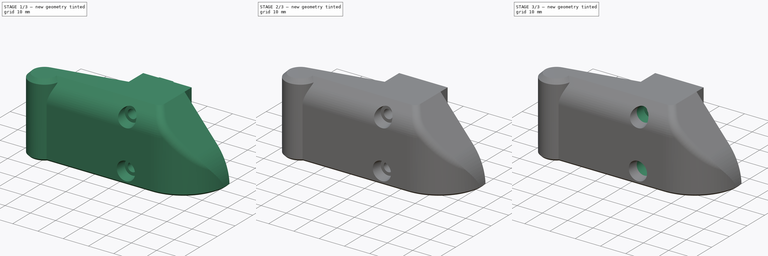
[diagram: build sequence overview — one tinted view per stage of 3, left to right]
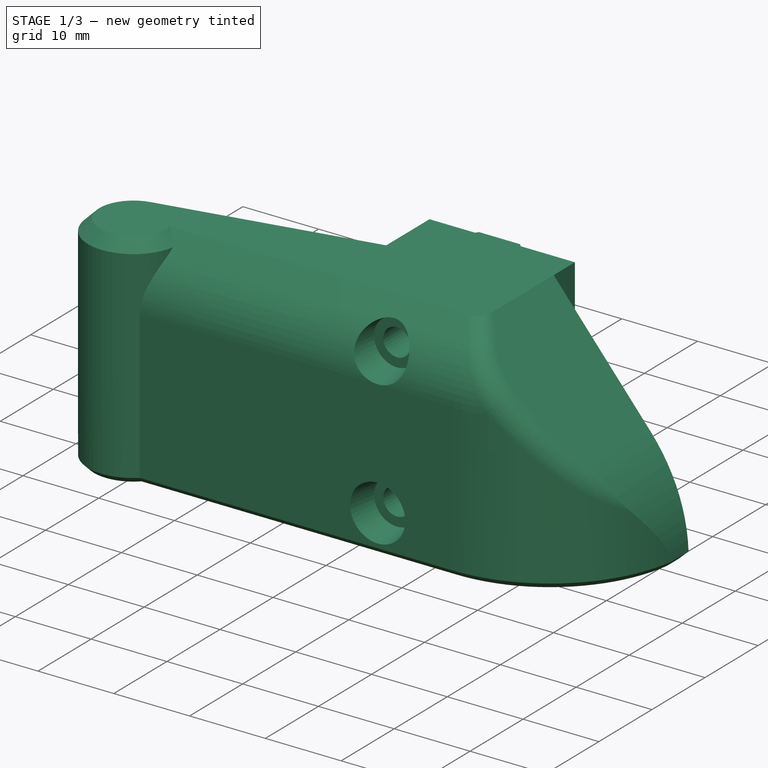
[diagram: stage 1 of 3 — iso view after this stage's code; geometry added in this stage tinted green]
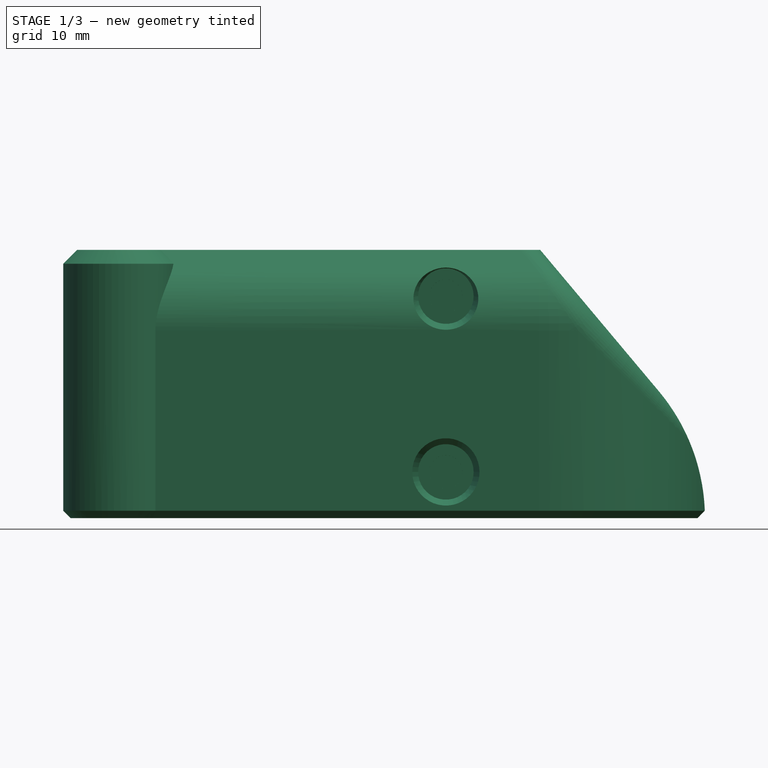
[diagram: stage 1 of 3 — front view after this stage's code; geometry added in this stage tinted green]
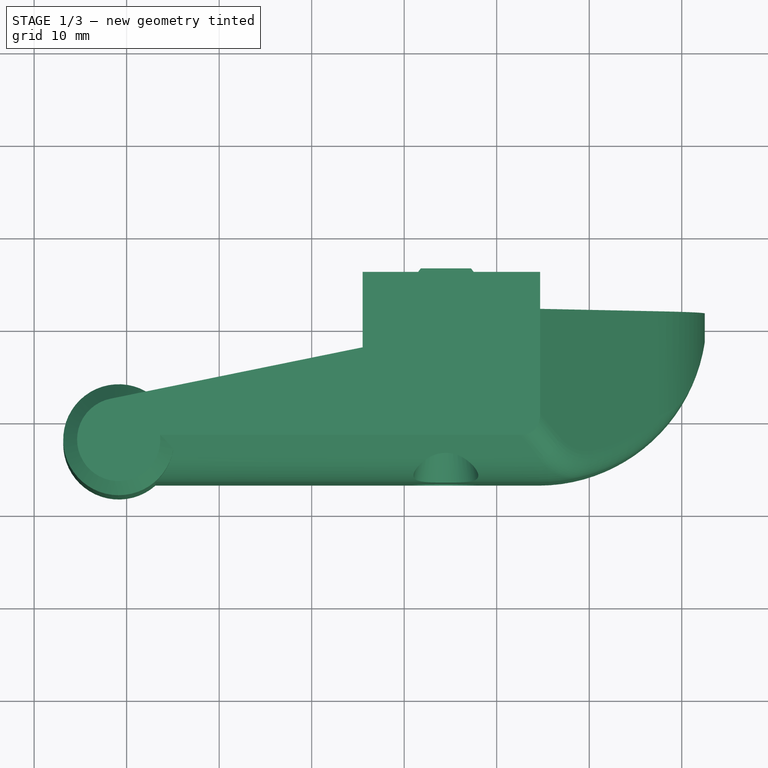
[diagram: stage 1 of 3 — top view after this stage's code; geometry added in this stage tinted green]
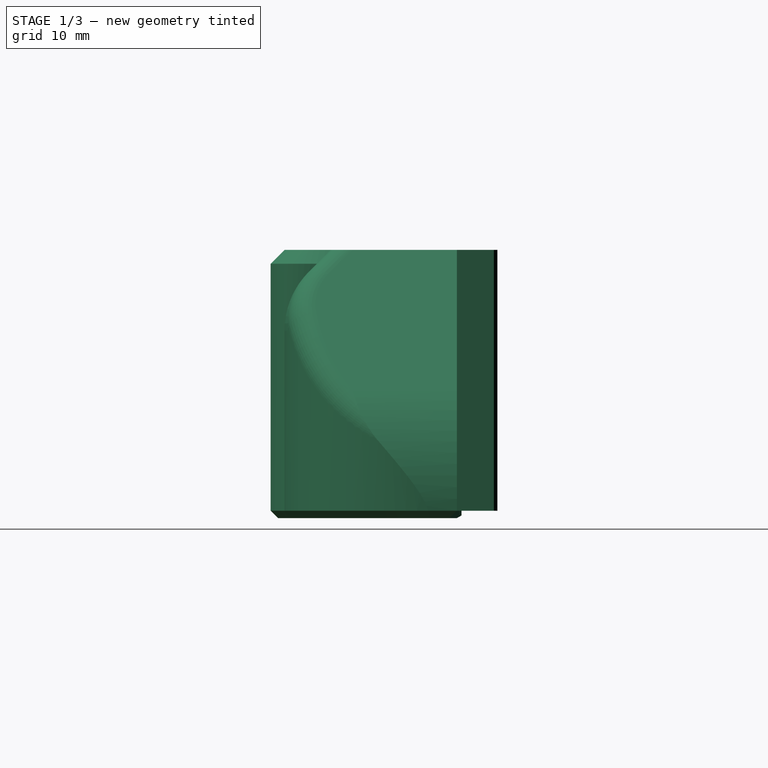
[diagram: stage 1 of 3 — right view after this stage's code; geometry added in this stage tinted green]
FCSTD DOCUMENT  (FreeCAD 1.0R39109 (Git))
Label: ExtendedHandle-Hinge_Bottom
License: All rights reserved
LicenseURL: https://en.wikipedia.org/wiki/All_rights_reserved
objects: Sketcher::SketchObject×4, PartDesign::Pocket×3, Part::Feature×1, Part::Refine×1, PartDesign::FeatureBase×1, PartDesign::Pad×1, PartDesign::Body×1
note: 25 computed .brp shape members not serialized (recipe doc carries the construction recipe); baked Part::Feature solids carry a one-line shape summary decoded from their .brp

FEATURE [Part::Feature] Handle_Hinge_Bottom001_solid  label="Handle_Hinge_Bottom001 (Solid)"
  shape: bbox 69.35 x 20.62 x 29 mm, 2824 faces (baked)
FEATURE [Part::Refine] Handle_Hinge_Bottom001_solid001  label="Handle_Hinge_Bottom001 (Solid)001"
  Source = -> Handle_Hinge_Bottom001_solid
FEATURE [PartDesign::FeatureBase] BaseFeature
  BaseFeature = -> Handle_Hinge_Bottom001_solid001
  Suppressed = false
FEATURE [Sketcher::SketchObject] Sketch
  ArcFitTolerance = 1e-06
  AttachmentSupport = -> [BaseFeature]
  ExternalGeometry = -> [BaseFeature]
  FullyConstrained = true
  MakeInternals = false
  MapMode = 5
  Placement = pos=(0,0,144.5) rot=(0,0,1;0rad)
  sketch-geometry (12):
    g0: LineSegment StartX=504.699 StartY=251.911 StartZ=0 EndX=504.699 EndY=255.911 EndZ=0
    g1: LineSegment StartX=504.699 StartY=255.911 StartZ=0 EndX=497.506 EndY=255.911 EndZ=0
    g2: LineSegment StartX=497.506 StartY=255.911 StartZ=0 EndX=497.217 EndY=256.291 EndZ=0
    g3: LineSegment StartX=497.217 StartY=256.291 StartZ=0 EndX=491.795 EndY=256.291 EndZ=0
    g4: LineSegment StartX=491.795 StartY=256.291 StartZ=0 EndX=491.506 EndY=255.911 EndZ=0
    g5: LineSegment StartX=491.506 StartY=255.911 StartZ=0 EndX=485.506 EndY=255.911 EndZ=0
    g6: LineSegment StartX=485.506 StartY=255.911 StartZ=0 EndX=485.506 EndY=251.911 EndZ=0
    g7: LineSegment StartX=485.506 StartY=251.911 StartZ=0 EndX=504.699 EndY=251.911 EndZ=0
    g8: LineSegment [constr] StartX=491.506 StartY=251.911 StartZ=0 EndX=491.506 EndY=255.911 EndZ=0
    g9: LineSegment [constr] StartX=491.795 StartY=252.411 StartZ=0 EndX=491.795 EndY=256.291 EndZ=0
    g10: LineSegment [constr] StartX=497.217 StartY=252.411 StartZ=0 EndX=497.217 EndY=256.291 EndZ=0
    g11: LineSegment [constr] StartX=497.506 StartY=251.911 StartZ=0 EndX=497.506 EndY=255.911 EndZ=0
  constraints (30):
    c: Coincident(g0,g-5)
    c: Coincident(g1,g0)
    c: Coincident(g2,g1)
    c: Coincident(g3,g2)
    c: Coincident(g4,g3)
    c: Coincident(g5,g4)
    c: Coincident(g6,g-3)
    c: Coincident(g7,g6)
    c: Coincident(g7,g0)
    c: Coincident(g5,g6)
    c: Angle(g7,g6) = 1.5708
    c: DistanceY(g6,g6) = 4
    c: Parallel(g7,g5)
    c: Parallel(g7,g3)
    c: Parallel(g7,g1)
    c: Parallel(g6,g0)
    c: Equal(g6,g0)
    c: Coincident(g8,g-3)
    c: Coincident(g8,g4)
    c: Coincident(g9,g-4)
    c: Coincident(g9,g3)
    c: Coincident(g10,g-4)
    c: Coincident(g10,g2)
    c: Coincident(g11,g-5)
    c: Coincident(g11,g1)
    c: Parallel(g11,g0)
    c: Parallel(g10,g11)
    c: Parallel(g6,g8)
    c: Parallel(g9,g8)
    c: Distance(g2,g2) = 0.477
FEATURE [PartDesign::Pad] Pad
  BaseFeature = -> BaseFeature
  Direction = (0,0,1)
  Length = 28.2
  Length2 = 10
  Profile = -> Sketch
  ReferenceAxis = -> Sketch [N_Axis]
  Refine = true
  Reversed = true
  Suppressed = false
  Type = 0
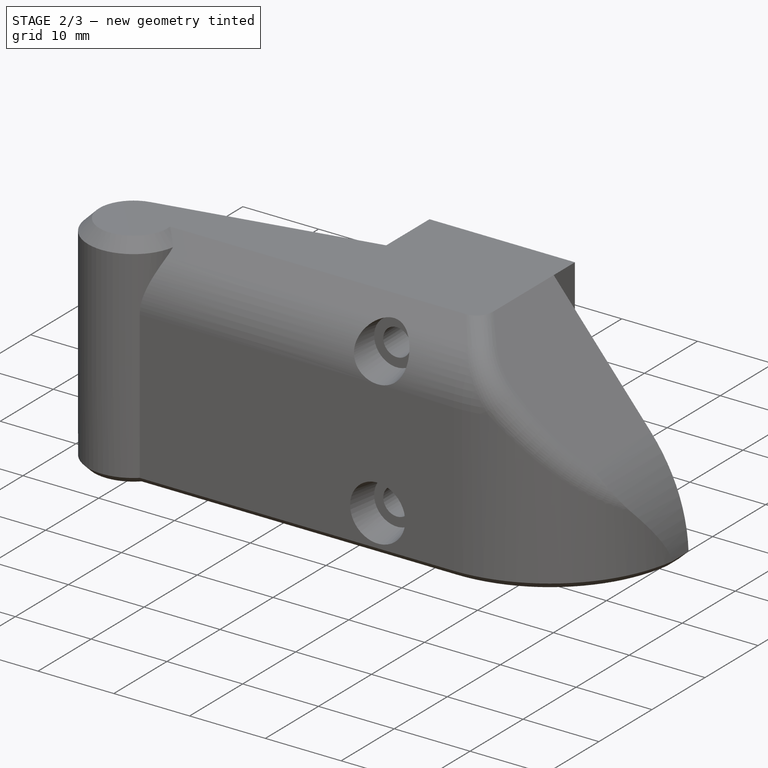
[diagram: stage 2 of 3 — iso view after this stage's code; geometry added in this stage tinted green]
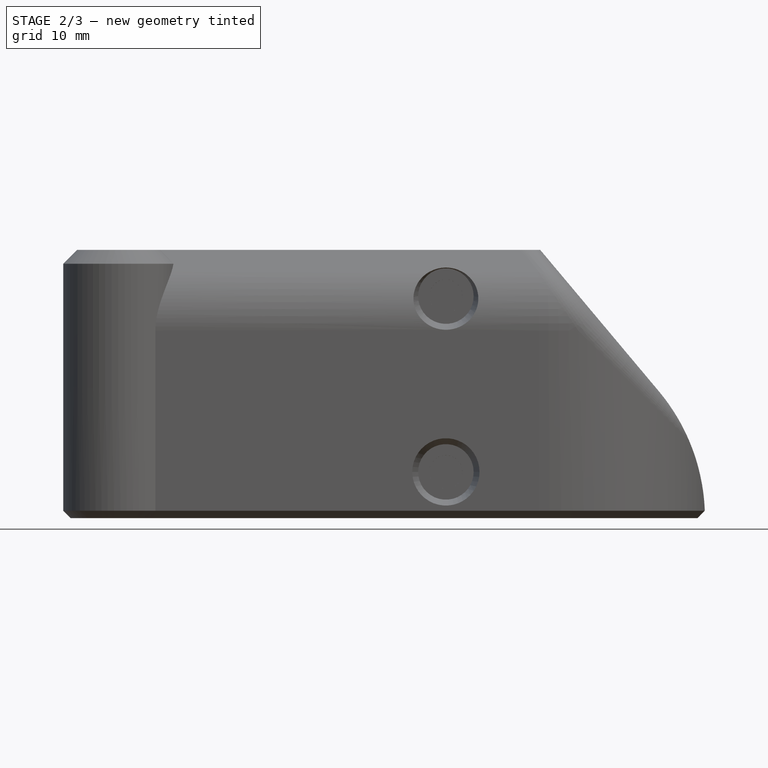
[diagram: stage 2 of 3 — front view after this stage's code; geometry added in this stage tinted green]
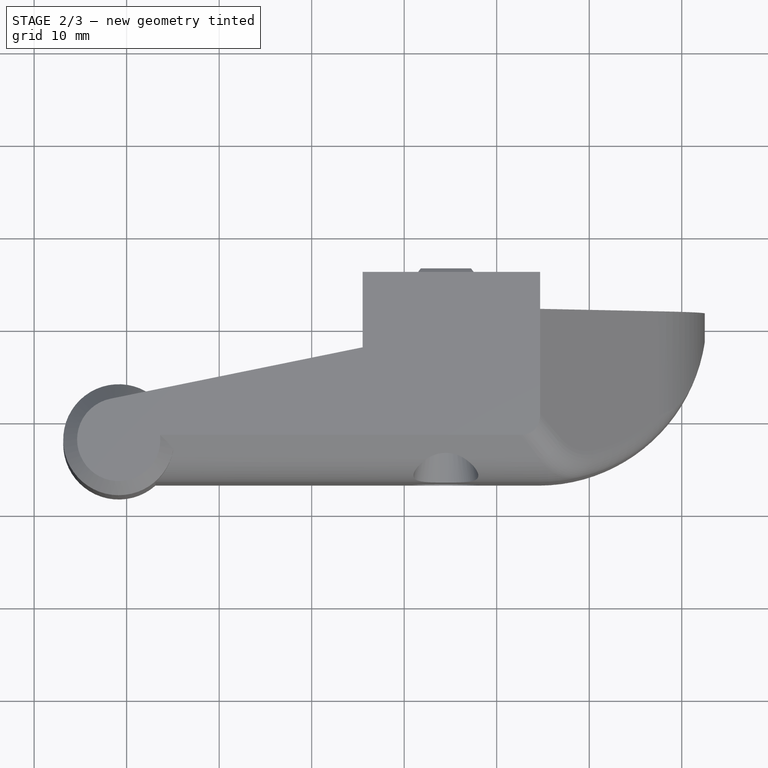
[diagram: stage 2 of 3 — top view after this stage's code; geometry added in this stage tinted green]
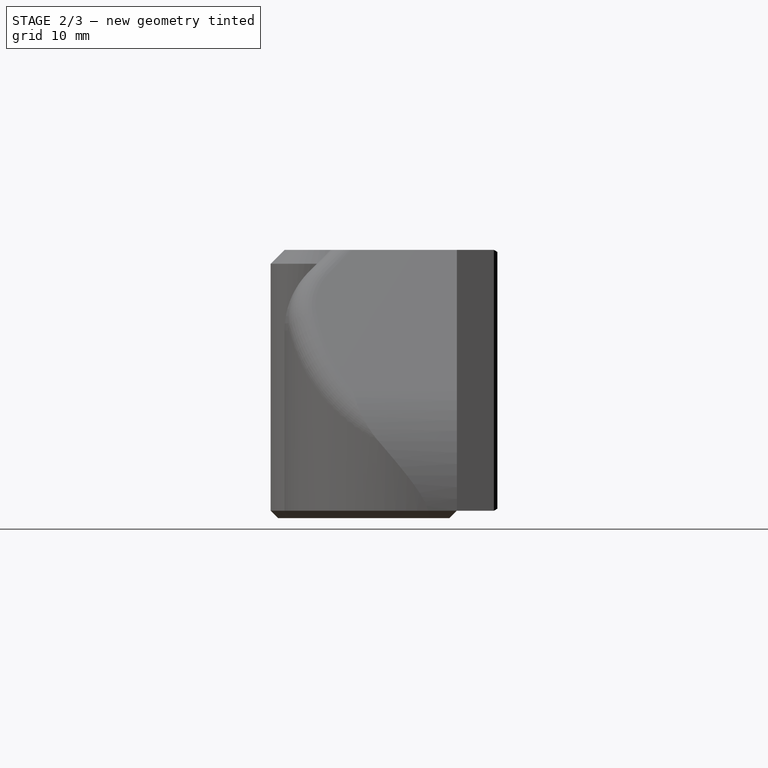
[diagram: stage 2 of 3 — right view after this stage's code; geometry added in this stage tinted green]
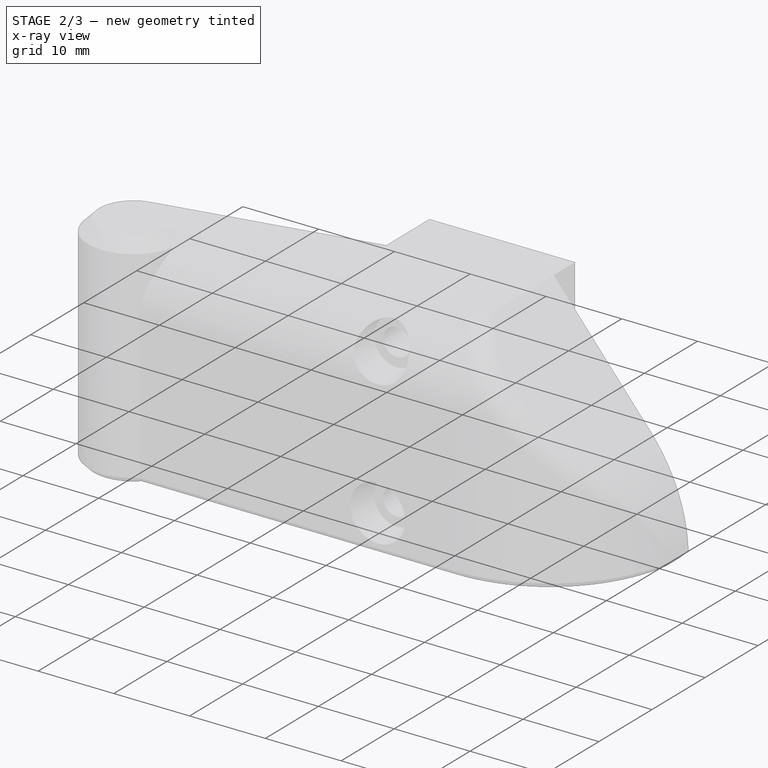
[diagram: stage 2 of 3 — x-ray composite at the iso view; earlier geometry ghosted, this stage's added geometry solid]
FEATURE [Sketcher::SketchObject] Sketch001
  ArcFitTolerance = 1e-06
  AttachmentSupport = -> [Pad]
  ExternalGeometry = -> [Pad]
  FullyConstrained = true
  MakeInternals = false
  MapMode = 5
  Placement = pos=(485.506,0,0) rot=(0.57735,-0.57735,-0.57735;2.0944rad)
  sketch-geometry (10):
    g0: LineSegment StartX=-251.911 StartY=116.3 StartZ=0 EndX=-251.111 EndY=115.5 EndZ=0
    g1: LineSegment StartX=-251.111 StartY=115.5 StartZ=0 EndX=-252.411 EndY=115.5 EndZ=0
    g2: LineSegment StartX=-252.411 StartY=115.5 StartZ=0 EndX=-252.411 EndY=116.3 EndZ=0
    g3: LineSegment StartX=-252.411 StartY=116.3 StartZ=0 EndX=-251.911 EndY=116.3 EndZ=0
    g4: LineSegment StartX=-255.911 StartY=116.3 StartZ=0 EndX=-256.291 EndY=116.3 EndZ=0
    g5: LineSegment StartX=-256.291 StartY=116.3 StartZ=0 EndX=-256.291 EndY=116.519 EndZ=0
    g6: LineSegment StartX=-256.291 StartY=116.519 StartZ=0 EndX=-255.911 EndY=116.3 EndZ=0
    g7: LineSegment StartX=-256.291 StartY=144.5 StartZ=0 EndX=-255.911 EndY=144.5 EndZ=0
    g8: LineSegment StartX=-255.911 StartY=144.5 StartZ=0 EndX=-256.291 EndY=144.281 EndZ=0
    g9: LineSegment StartX=-256.291 StartY=144.281 StartZ=0 EndX=-256.291 EndY=144.5 EndZ=0
  constraints (23):
    c: Coincident(g0,g-5)
    c: Coincident(g0,g-5)
    c: Coincident(g1,g0)
    c: Horizontal(g1)
    c: Coincident(g2,g1)
    c: Vertical(g2)
    c: Coincident(g3,g2)
    c: Coincident(g3,g0)
    c: Coincident(g-6,g2)
    c: Coincident(g4,g-4)
    c: Coincident(g4,g-4)
    c: Coincident(g5,g4)
    c: Vertical(g5)
    c: Coincident(g6,g4)
    c: Angle(g5,g6) = 1.0472
    c: Coincident(g5,g6)
    c: Coincident(g7,g-3)
    c: Coincident(g7,g-3)
    c: Coincident(g8,g7)
    c: Coincident(g9,g8)
    c: Coincident(g9,g7)
    c: Vertical(g9)
    c: Angle(g8,g9) = 1.0472
FEATURE [PartDesign::Pocket] Pocket
  BaseFeature = -> Pad
  Direction = (1,0,0)
  Length = 5
  Length2 = 5
  Profile = -> Sketch001
  ReferenceAxis = -> Sketch001 [N_Axis]
  Refine = true
  Suppressed = false
  Type = 1
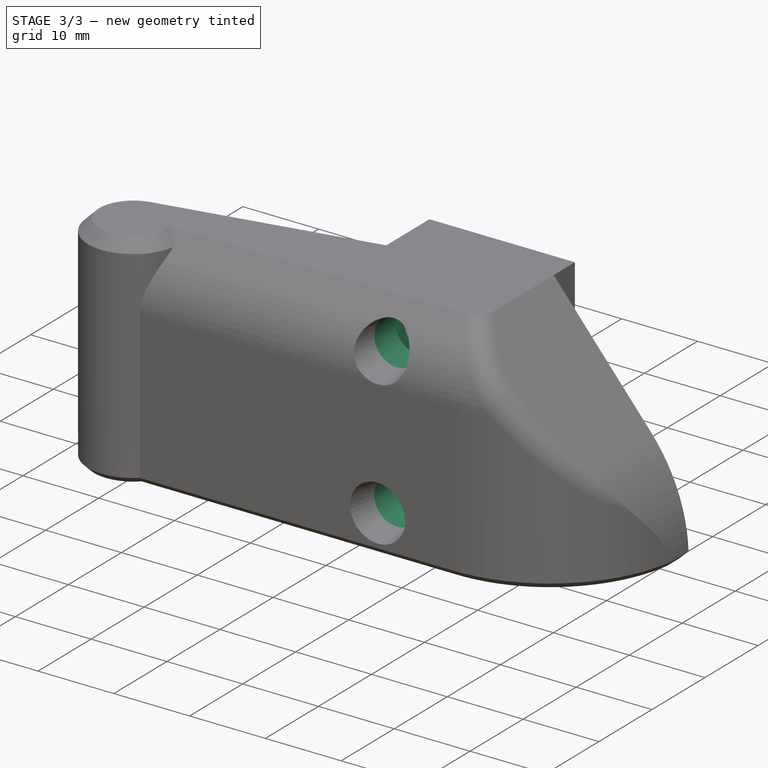
[diagram: stage 3 of 3 — iso view after this stage's code; geometry added in this stage tinted green]
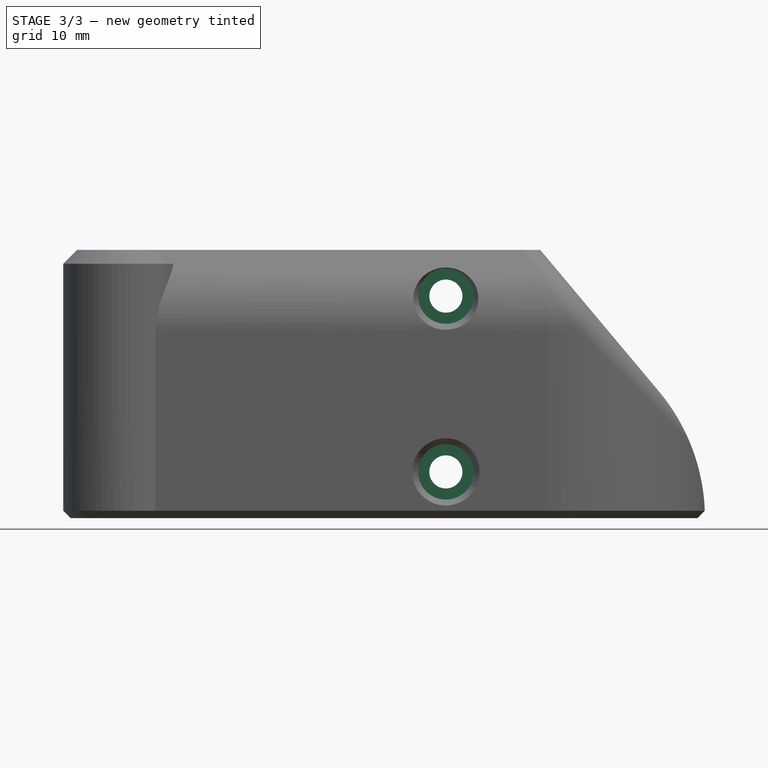
[diagram: stage 3 of 3 — front view after this stage's code; geometry added in this stage tinted green]
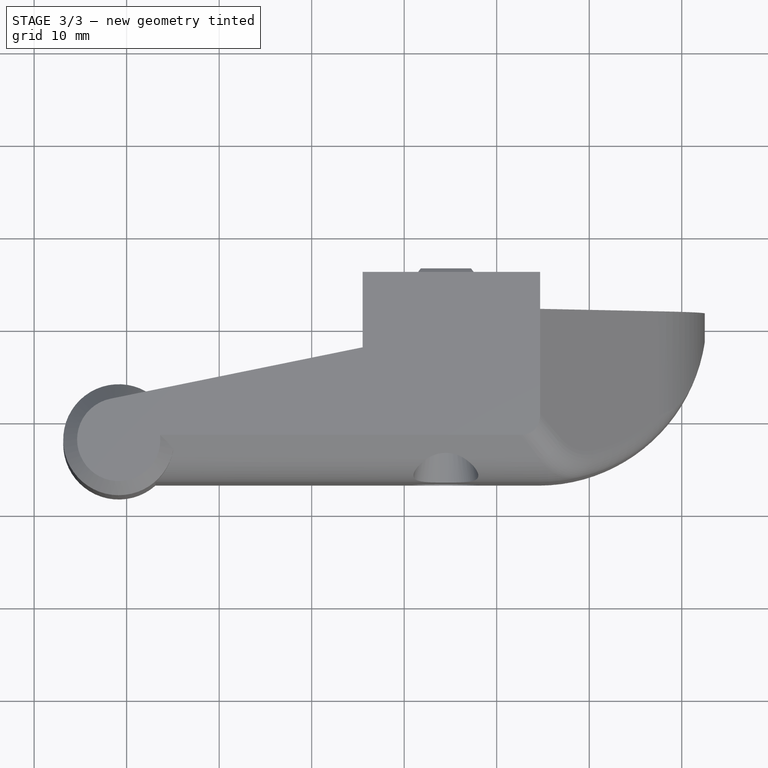
[diagram: stage 3 of 3 — top view after this stage's code; geometry added in this stage tinted green]
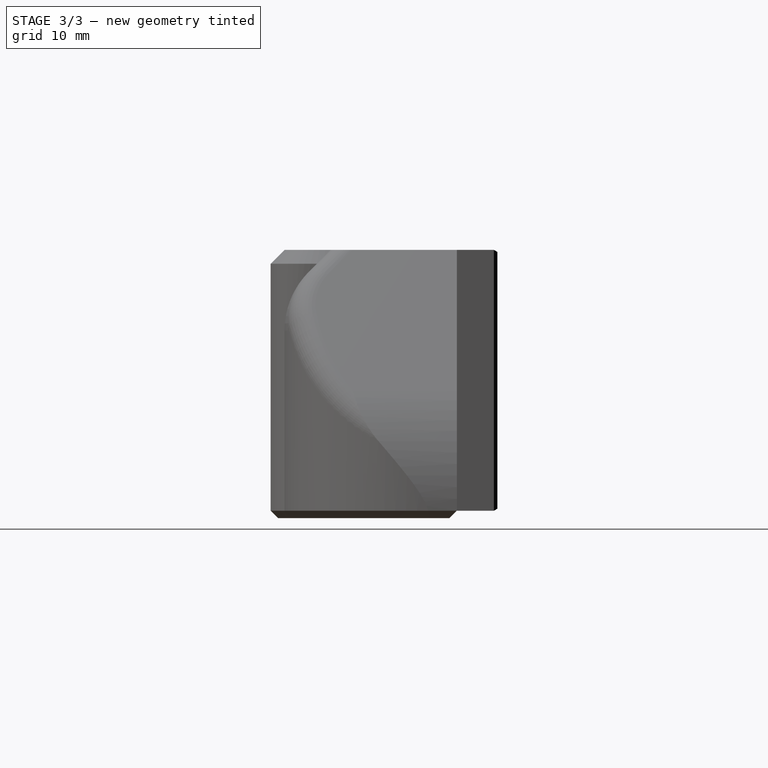
[diagram: stage 3 of 3 — right view after this stage's code; geometry added in this stage tinted green]
FEATURE [Sketcher::SketchObject] Sketch002
  ArcFitTolerance = 1e-06
  AttachmentSupport = -> [Pocket]
  ExternalGeometry = -> [Pocket]
  FullyConstrained = true
  MakeInternals = false
  MapMode = 5
  Placement = pos=(0,251.911,0) rot=(1,0,0;1.5708rad)
  sketch-geometry (2):
    g0: Circle CenterX=494.506 CenterY=139.5 CenterZ=0 NormalX=0 NormalY=0 NormalZ=1 AngleXU=0 Radius=1.79014
    g1: Circle CenterX=494.506 CenterY=120.5 CenterZ=0 NormalX=0 NormalY=0 NormalZ=1 AngleXU=0 Radius=1.79014
  constraints (6):
    c: DistanceY(g1,g0) = 19
    c: Vertical(g0,g1)
    c: Tangent(g-3,g0)
    c: Tangent(g-4,g0)
    c: Tangent(g0,g-5)
    c: Equal(g0,g1)
FEATURE [PartDesign::Pocket] Pocket001
  BaseFeature = -> Pocket
  Direction = (0,1,-2e-16)
  Length = 5
  Length2 = 5
  Profile = -> Sketch002
  ReferenceAxis = -> Sketch002 [N_Axis]
  Refine = true
  Suppressed = false
  Type = 1
FEATURE [Sketcher::SketchObject] Sketch003
  ArcFitTolerance = 1e-06
  AttachmentSupport = -> [Pocket001]
  ExternalGeometry = -> [Pocket001]
  FullyConstrained = true
  MakeInternals = false
  MapMode = 5
  Placement = pos=(0,236.911,0) rot=(1,0,0;1.5708rad)
  sketch-geometry (2):
    g0: Circle CenterX=494.506 CenterY=139.5 CenterZ=0 NormalX=0 NormalY=0 NormalZ=1 AngleXU=0 Radius=2.98975
    g1: Circle CenterX=494.506 CenterY=120.5 CenterZ=0 NormalX=0 NormalY=0 NormalZ=1 AngleXU=0 Radius=2.98975
  constraints (6):
    c: Vertical(g0,g1)
    c: DistanceY(g1,g0) = 19
    c: Tangent(g1,g-3)
    c: Tangent(g-4,g1)
    c: Tangent(g-5,g1)
    c: Equal(g1,g0)
FEATURE [PartDesign::Pocket] Pocket002
  BaseFeature = -> Pocket001
  Direction = (0,1,-2e-16)
  Length = 4
  Length2 = 5
  Profile = -> Sketch003
  ReferenceAxis = -> Sketch003 [N_Axis]
  Refine = true
  Suppressed = false
  Type = 0
FEATURE [PartDesign::Body] Body
  AllowCompound = false
  BaseFeature = -> Handle_Hinge_Bottom001_solid001
  Group = -> [BaseFeature,Sketch,Pad,Sketch001,Pocket,Sketch002,Pocket001,Sketch003,Pocket002]
  Origin = -> Origin
  Tip = -> Pocket002
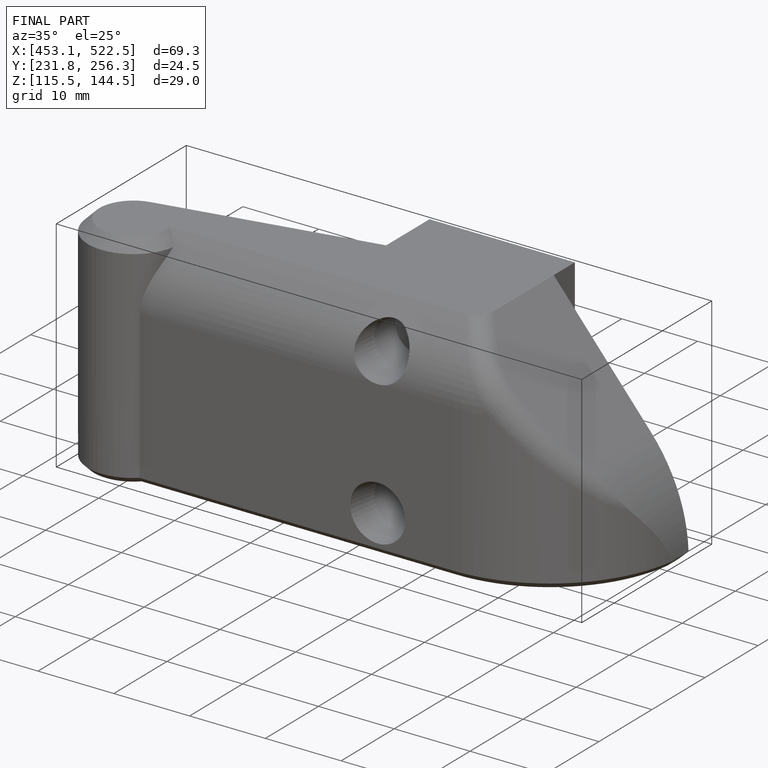
[diagram: finished part — iso view with bounding-box wireframe]
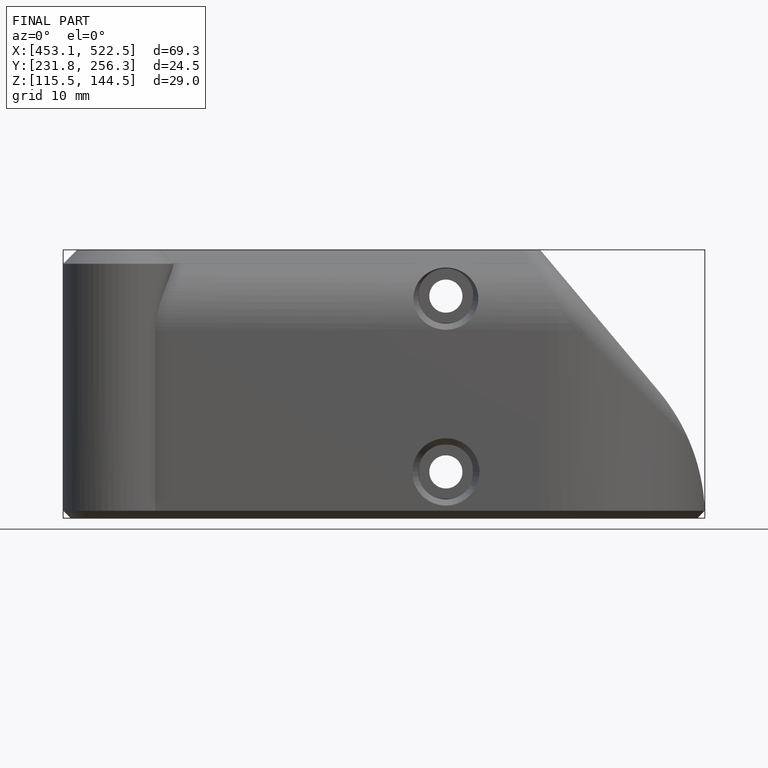
[diagram: finished part — front view with bounding-box wireframe]
